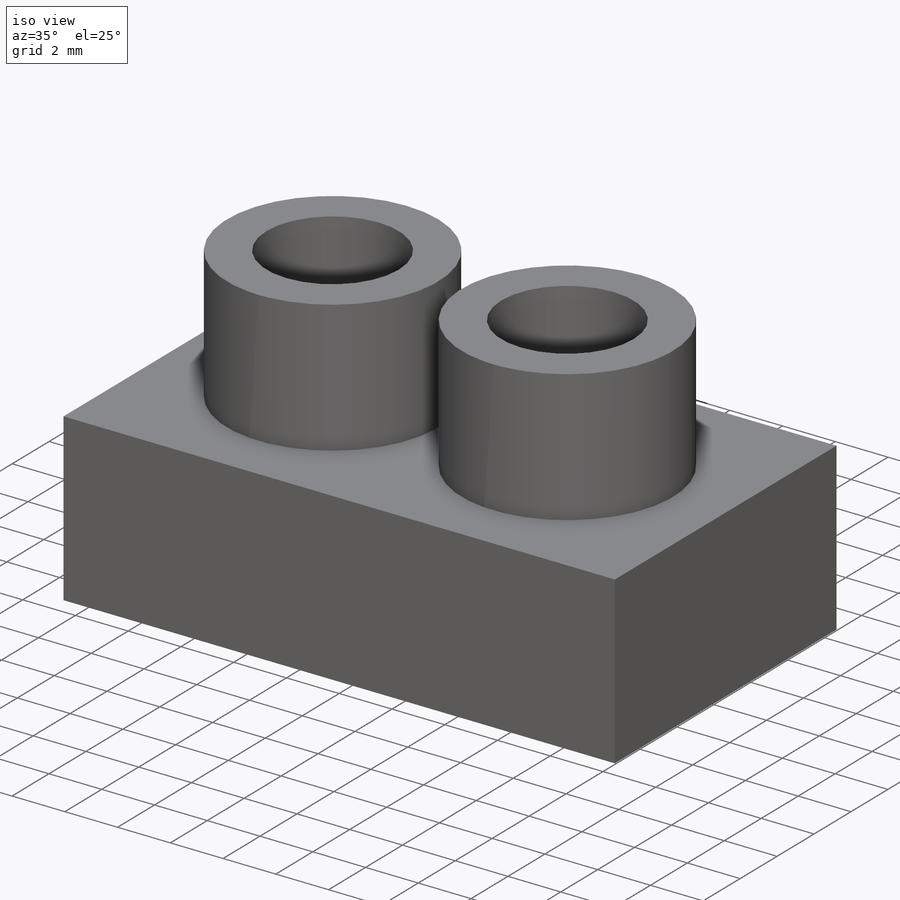
[diagram: iso view]
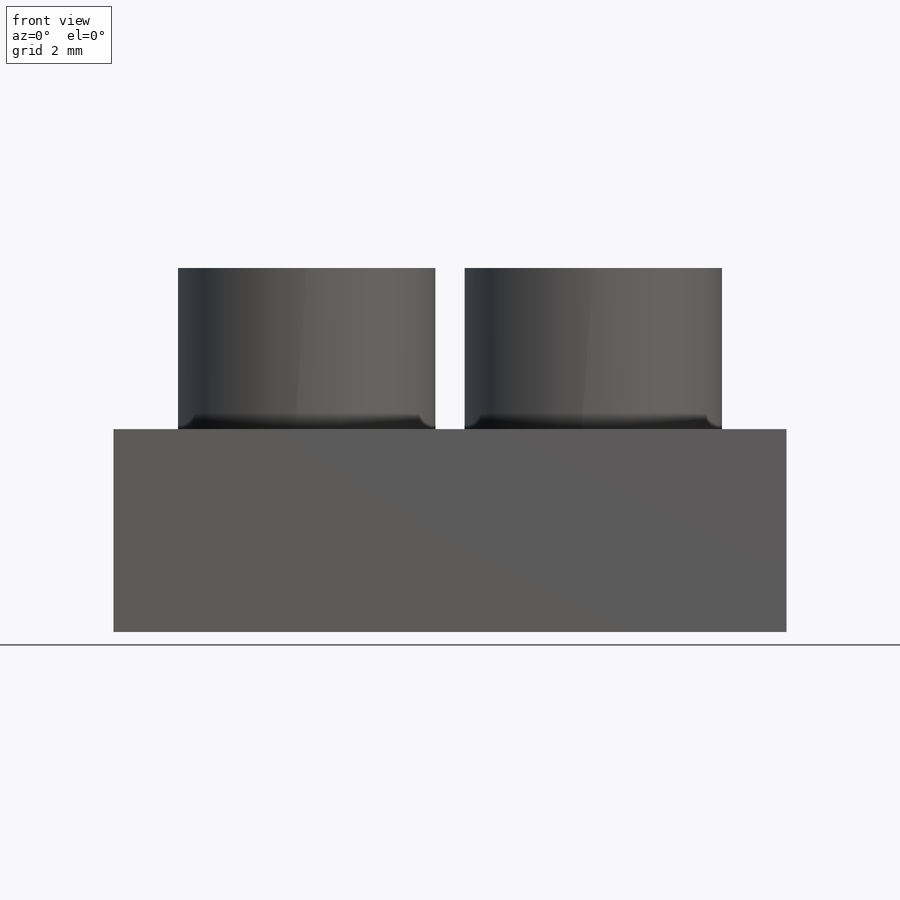
[diagram: front view]
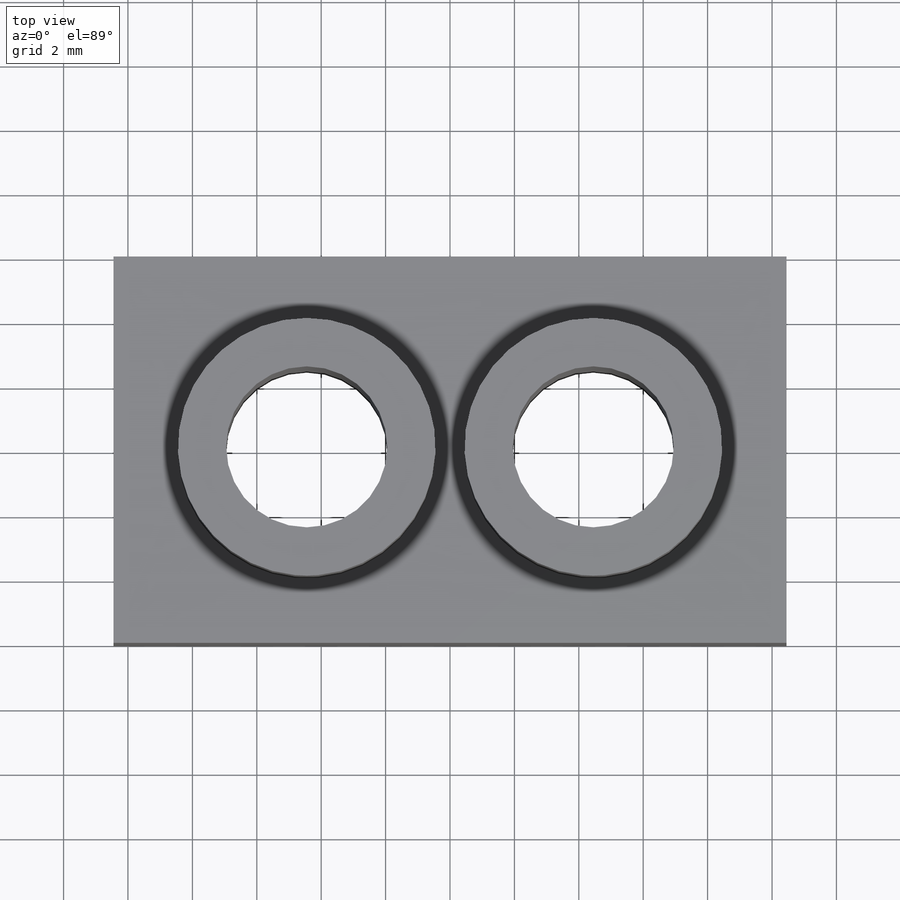
[diagram: top view]
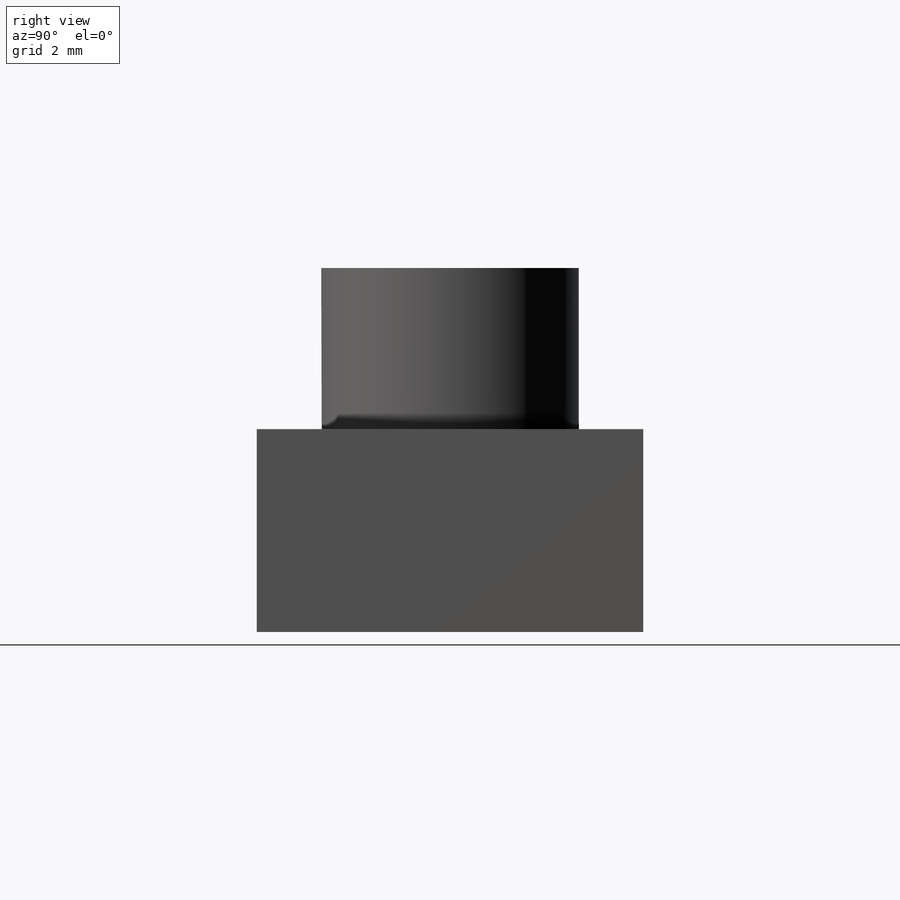
[diagram: right view]
SOLIDWORKS PART (.sldprt)
format: sldprt  version: not decoded by parser v0  size: 151,552 bytes
history: native  units: mm
features: sketch x3, extrude x2, material x1, cut_extrude x1 (+12 scaffold rows collapsed)
feature tree (19):
  scaffold x12  (default folders/planes/origin — collapsed)
  material  "Material <not specified>"
  sketch  "Sketch1"  dims[c1.D1=5.3mm c2.D1=20.9mm c2.D2=2.0mm]
  extrude  "Boss-Extrude1"  Depth=6.3mm
  sketch  "Sketch2"  dims[D1=8.0mm D2=8.0mm D3=8.9mm D4=4.45mm]
  extrude  "Boss-Extrude2"  Depth=5mm
  sketch  "Sketch3"  dims[D1=1.5mm D2=1.5mm]
  cut_extrude  "Cut-Extrude1"  [1 undecoded]
decode coverage: 5 of 6 modeling features carry decoded parameters
note: 1 parameter value undecoded
note: suppression state not decoded; provenance and decode notes live in map.json
